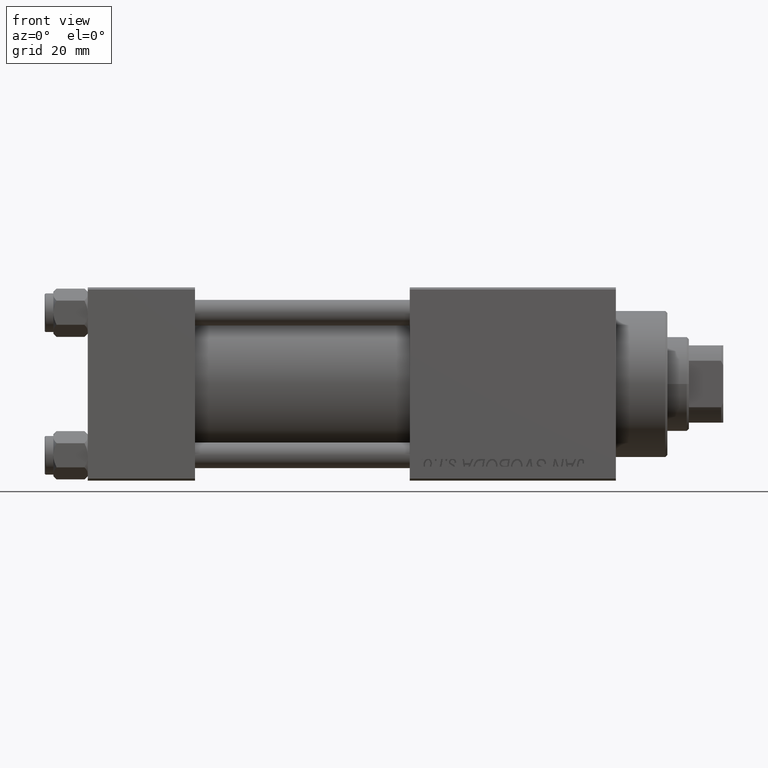
[diagram: clean part render]
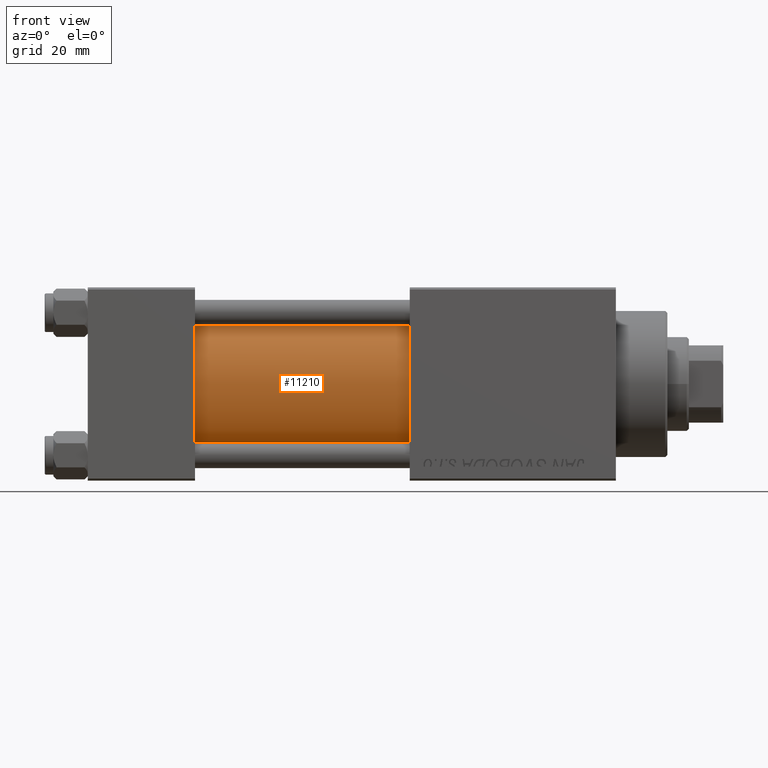
[diagram: same view with one face highlighted and labeled with its STEP entity id]
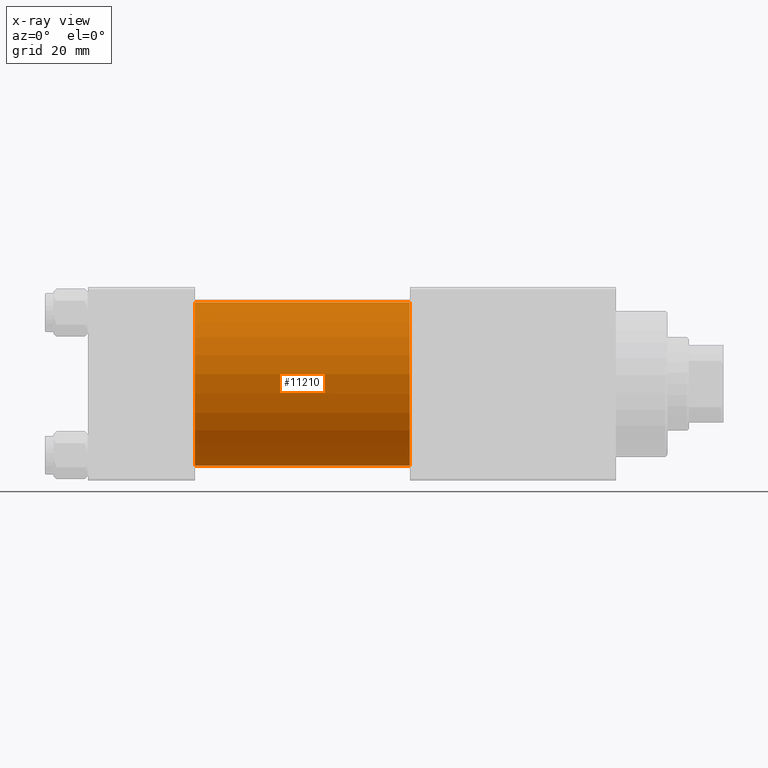
[diagram: x-ray of the same camera — body ghosted, the highlighted face saturated]
A machine part, front view. The second image highlights one B-rep face of the part: STEP entity #11210.
The next image is the same camera in x-ray: the body ghosted, the highlighted face saturated — about 0% of this face is hidden behind the body in this view.
In plain terms, the highlighted cylindrical surface (partial cylindrical patch) has radius 19 mm, axis along (-1, -0, -0).
Its self-contained STEP definition (entity closure, byte-faithful):
#1736 = ORIENTED_EDGE ( 'NONE', *, *, #5740, .F. ) ;
#3344 = CARTESIAN_POINT ( 'NONE',  ( 75.00000000000001421, -2.752562955852396712E-16, -19.00000000000000000 ) ) ;
#3680 = AXIS2_PLACEMENT_3D ( 'NONE', #41021, #13026, #32616 ) ;
#5740 = EDGE_CURVE ( 'NONE', #9123, #34368, #21652, .T. ) ;
#7491 = CARTESIAN_POINT ( 'NONE',  ( 75.00000000000001421, -2.602085213965210642E-15, 19.00000000000000000 ) ) ;
#8701 = AXIS2_PLACEMENT_3D ( 'NONE', #41019, #48402, #32864 ) ;
#9123 = VERTEX_POINT ( 'NONE', #37791 ) ;
#9399 = CARTESIAN_POINT ( 'NONE',  ( 75.00000000000001421, -2.752562955852396712E-16, -19.00000000000000000 ) ) ;
#9800 = CARTESIAN_POINT ( 'NONE',  ( 25.00000000000000000, -2.602085213965210642E-15, 19.00000000000000000 ) ) ;
#10660 = ORIENTED_EDGE ( 'NONE', *, *, #38959, .F. ) ;
#11210 = ADVANCED_FACE ( 'NONE', ( #29062 ), #36688, .T. ) ;
#13026 = DIRECTION ( 'NONE',  ( 1.000000000000000000, 0.000000000000000000, 0.000000000000000000 ) ) ;
#14545 = CARTESIAN_POINT ( 'NONE',  ( 25.00000000000000000, -2.602085213965210642E-15, 0.000000000000000000 ) ) ;
#16686 = EDGE_CURVE ( 'NONE', #9123, #45564, #42639, .T. ) ;
#16813 = LINE ( 'NONE', #9399, #28080 ) ;
#19733 = DIRECTION ( 'NONE',  ( -1.000000000000000000, -0.000000000000000000, -0.000000000000000000 ) ) ;
#21652 = CIRCLE ( 'NONE', #3680, 19.00000000000000000 ) ;
#28080 = VECTOR ( 'NONE', #32332, 1000.000000000000000 ) ;
#29062 = FACE_OUTER_BOUND ( 'NONE', #34258, .T. ) ;
#29837 = DIRECTION ( 'NONE',  ( 1.000000000000000000, -0.000000000000000000, 0.000000000000000000 ) ) ;
#32332 = DIRECTION ( 'NONE',  ( -1.000000000000000000, -0.000000000000000000, -0.000000000000000000 ) ) ;
#32616 = DIRECTION ( 'NONE',  ( 0.000000000000000000, 0.000000000000000000, -1.000000000000000000 ) ) ;
#32864 = DIRECTION ( 'NONE',  ( 0.000000000000000000, 0.000000000000000000, 1.000000000000000000 ) ) ;
#33738 = AXIS2_PLACEMENT_3D ( 'NONE', #14545, #29837, #34154 ) ;
#34154 = DIRECTION ( 'NONE',  ( 0.000000000000000000, 0.000000000000000000, 1.000000000000000000 ) ) ;
#34258 = EDGE_LOOP ( 'NONE', ( #10660, #1736, #49519, #43282 ) ) ;
#34368 = VERTEX_POINT ( 'NONE', #3344 ) ;
#36202 = CARTESIAN_POINT ( 'NONE',  ( 25.00000000000000000, -2.752562955852396712E-16, -19.00000000000000000 ) ) ;
#36688 = CYLINDRICAL_SURFACE ( 'NONE', #8701, 19.00000000000000000 ) ;
#37554 = EDGE_CURVE ( 'NONE', #45564, #46469, #45111, .T. ) ;
#37791 = CARTESIAN_POINT ( 'NONE',  ( 75.00000000000001421, -2.602085213965210642E-15, 19.00000000000000000 ) ) ;
#38959 = EDGE_CURVE ( 'NONE', #34368, #46469, #16813, .T. ) ;
#41019 = CARTESIAN_POINT ( 'NONE',  ( 75.00000000000001421, -2.602085213965210642E-15, 0.000000000000000000 ) ) ;
#41021 = CARTESIAN_POINT ( 'NONE',  ( 75.00000000000001421, -2.602085213965210642E-15, 0.000000000000000000 ) ) ;
#42639 = LINE ( 'NONE', #7491, #45507 ) ;
#43282 = ORIENTED_EDGE ( 'NONE', *, *, #37554, .T. ) ;
#45111 = CIRCLE ( 'NONE', #33738, 19.00000000000000000 ) ;
#45507 = VECTOR ( 'NONE', #19733, 1000.000000000000000 ) ;
#45564 = VERTEX_POINT ( 'NONE', #9800 ) ;
#46469 = VERTEX_POINT ( 'NONE', #36202 ) ;
#48402 = DIRECTION ( 'NONE',  ( -1.000000000000000000, -0.000000000000000000, -0.000000000000000000 ) ) ;
#49519 = ORIENTED_EDGE ( 'NONE', *, *, #16686, .T. ) ;